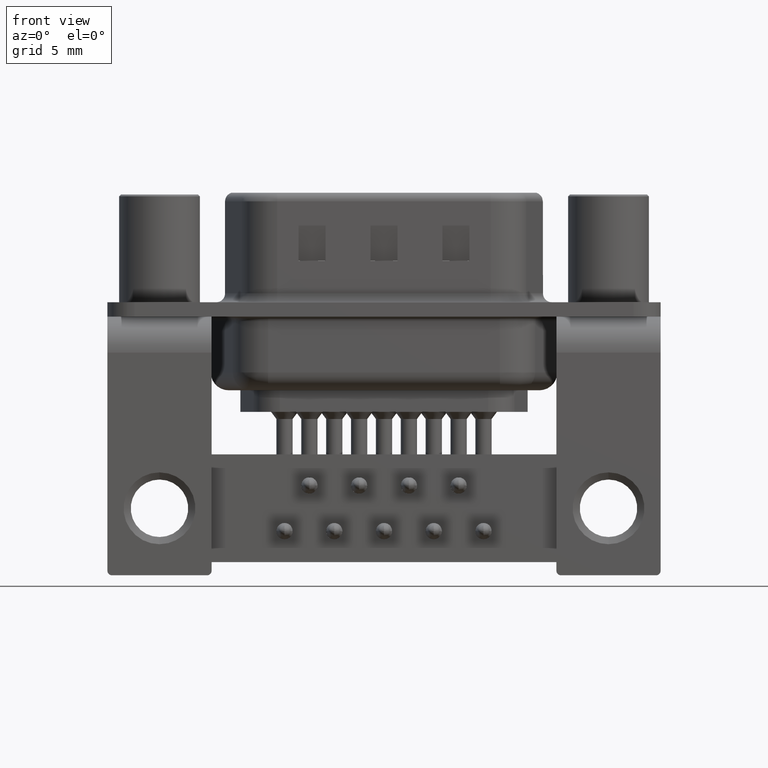
[diagram: clean part render]
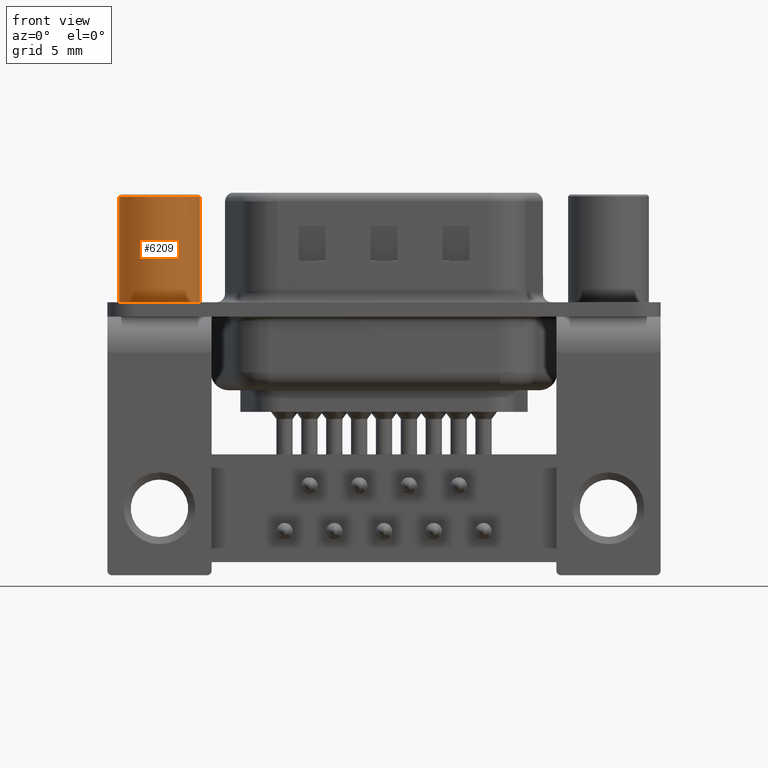
[diagram: same view with one face highlighted and labeled with its STEP entity id]
A machine part, front view. The second image highlights one B-rep face of the part: STEP entity #6209.
In plain terms, the highlighted cylindrical surface (partial cylindrical patch) has radius 2.25 mm, axis along (0, 0, 1).
Its self-contained STEP definition (entity closure, byte-faithful):
#160 = CARTESIAN_POINT ( 'NONE',  ( 0.0000000000000000000, 0.0000000000000000000, 0.4000000000000001900 ) ) ;
#220 = DIRECTION ( 'NONE',  ( -0.0000000000000000000, -0.0000000000000000000, 1.000000000000000000 ) ) ;
#738 = DIRECTION ( 'NONE',  ( 1.000000000000000000, 0.0000000000000000000, 0.0000000000000000000 ) ) ;
#3789 = CIRCLE ( 'NONE', #17992, 2.250000000000000000 ) ;
#3795 = CARTESIAN_POINT ( 'NONE',  ( -2.250000000000000000, 0.0000000000000000000, 6.299999999999999800 ) ) ;
#3869 = VERTEX_POINT ( 'NONE', #19218 ) ;
#4190 = CARTESIAN_POINT ( 'NONE',  ( 0.0000000000000000000, 0.0000000000000000000, 6.299999999999999800 ) ) ;
#4482 = CARTESIAN_POINT ( 'NONE',  ( 0.0000000000000000000, 0.0000000000000000000, 0.5806333143474410300 ) ) ;
#4709 = EDGE_CURVE ( 'NONE', #12883, #6261, #3789, .T. ) ;
#5918 = DIRECTION ( 'NONE',  ( 1.000000000000000000, 0.0000000000000000000, 0.0000000000000000000 ) ) ;
#6209 = ADVANCED_FACE ( 'NONE', ( #8613 ), #17268, .T. ) ;
#6261 = VERTEX_POINT ( 'NONE', #8077 ) ;
#8077 = CARTESIAN_POINT ( 'NONE',  ( 2.250000000000000000, 0.0000000000000000000, 0.4000000000000001900 ) ) ;
#8613 = FACE_OUTER_BOUND ( 'NONE', #20446, .T. ) ;
#8790 = LINE ( 'NONE', #11235, #17448 ) ;
#8981 = ORIENTED_EDGE ( 'NONE', *, *, #20458, .F. ) ;
#9431 = ORIENTED_EDGE ( 'NONE', *, *, #4709, .T. ) ;
#11235 = CARTESIAN_POINT ( 'NONE',  ( 2.250000000000000000, 0.0000000000000000000, 0.5806333143474410300 ) ) ;
#12021 = VECTOR ( 'NONE', #18069, 1000.000000000000000 ) ;
#12517 = CARTESIAN_POINT ( 'NONE',  ( -2.250000000000000000, 2.755455298081544800E-016, 0.4000000000000001900 ) ) ;
#12554 = LINE ( 'NONE', #21545, #12021 ) ;
#12883 = VERTEX_POINT ( 'NONE', #12517 ) ;
#13529 = VERTEX_POINT ( 'NONE', #3795 ) ;
#14263 = AXIS2_PLACEMENT_3D ( 'NONE', #4482, #21827, #16548 ) ;
#15130 = EDGE_CURVE ( 'NONE', #6261, #3869, #8790, .T. ) ;
#16253 = DIRECTION ( 'NONE',  ( -0.0000000000000000000, -0.0000000000000000000, 1.000000000000000000 ) ) ;
#16432 = DIRECTION ( 'NONE',  ( -0.0000000000000000000, -0.0000000000000000000, 1.000000000000000000 ) ) ;
#16548 = DIRECTION ( 'NONE',  ( 1.000000000000000000, 0.0000000000000000000, 0.0000000000000000000 ) ) ;
#16677 = EDGE_CURVE ( 'NONE', #12883, #13529, #12554, .T. ) ;
#16772 = CIRCLE ( 'NONE', #16855, 2.250000000000000000 ) ;
#16855 = AXIS2_PLACEMENT_3D ( 'NONE', #4190, #16253, #5918 ) ;
#17268 = CYLINDRICAL_SURFACE ( 'NONE', #14263, 2.250000000000000000 ) ;
#17448 = VECTOR ( 'NONE', #16432, 1000.000000000000000 ) ;
#17708 = ORIENTED_EDGE ( 'NONE', *, *, #16677, .F. ) ;
#17992 = AXIS2_PLACEMENT_3D ( 'NONE', #160, #220, #738 ) ;
#18069 = DIRECTION ( 'NONE',  ( -0.0000000000000000000, -0.0000000000000000000, 1.000000000000000000 ) ) ;
#19218 = CARTESIAN_POINT ( 'NONE',  ( 2.250000000000000000, 2.755455298081544300E-016, 6.299999999999999800 ) ) ;
#20446 = EDGE_LOOP ( 'NONE', ( #17708, #9431, #20885, #8981 ) ) ;
#20458 = EDGE_CURVE ( 'NONE', #13529, #3869, #16772, .T. ) ;
#20885 = ORIENTED_EDGE ( 'NONE', *, *, #15130, .T. ) ;
#21545 = CARTESIAN_POINT ( 'NONE',  ( -2.250000000000000000, 2.755455298081544300E-016, 0.5806333143474410300 ) ) ;
#21827 = DIRECTION ( 'NONE',  ( -0.0000000000000000000, -0.0000000000000000000, 1.000000000000000000 ) ) ;